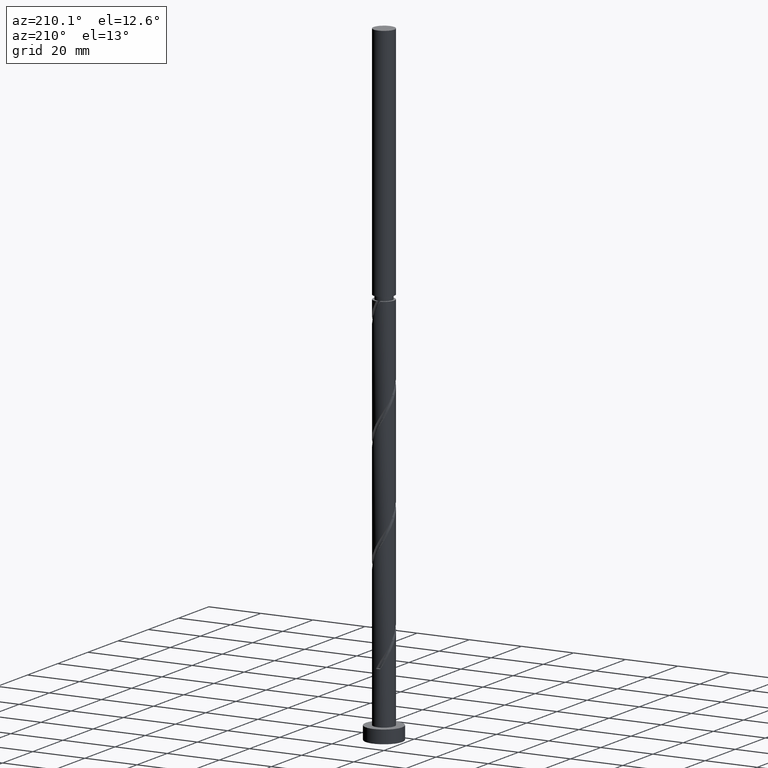
[diagram: clean part render]
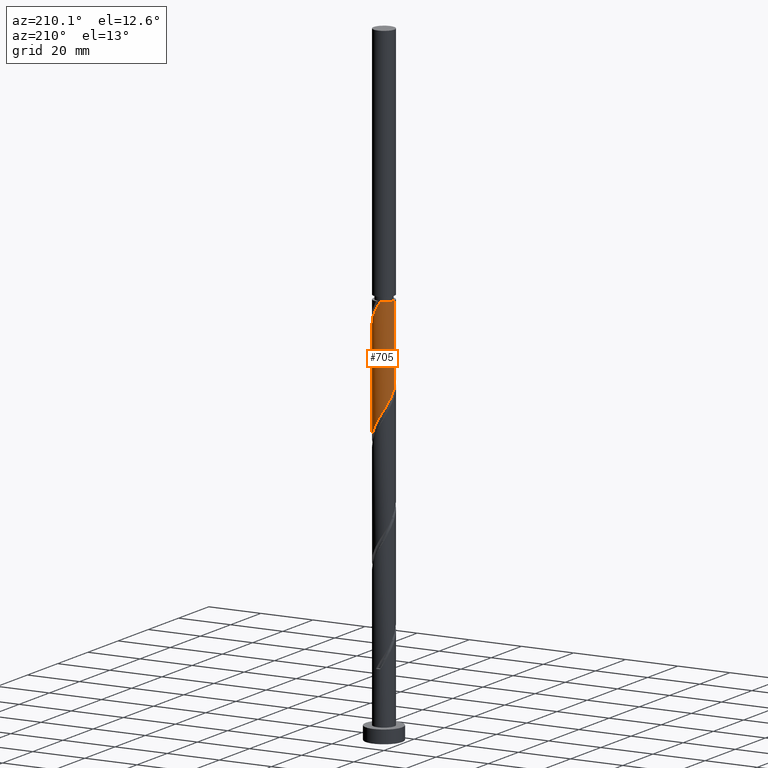
[diagram: same view with one face highlighted and labeled with its STEP entity id]
A machine part, auxiliary view. The second image highlights one B-rep face of the part: STEP entity #705.
In plain terms, the highlighted cylindrical surface (edge-blend (fillet) strip) has radius 4 mm, axis along (-0, -0, -1).
Its self-contained STEP definition (entity closure, byte-faithful):
#8 = CARTESIAN_POINT ( 'NONE',  ( 3.642154467511937277, 1.723543908038581041, 141.0507864414061032 ) ) ;
#14 = CARTESIAN_POINT ( 'NONE',  ( 3.999999999999999112, -4.157750912253752728E-15, 99.10947754806721832 ) ) ;
#35 = DIRECTION ( 'NONE',  ( -1.000000000000000000, 0.000000000000000000, 0.000000000000000000 ) ) ;
#48 = CARTESIAN_POINT ( 'NONE',  ( 0.1652574756069173367, 3.996584787885284928, 148.2623249029446129 ) ) ;
#93 = CYLINDRICAL_SURFACE ( 'NONE', #1162, 4.000000000000000000 ) ;
#109 = DIRECTION ( 'NONE',  ( -0.000000000000000000, -0.000000000000000000, -1.000000000000000000 ) ) ;
#158 = CARTESIAN_POINT ( 'NONE',  ( 2.773922925134614914, 2.881900693190635909, 143.4546325952522352 ) ) ;
#167 = ORIENTED_EDGE ( 'NONE', *, *, #364, .F. ) ;
#199 = CARTESIAN_POINT ( 'NONE',  ( 3.947525597521973406, 0.6457876252366410164, 100.1854018260215327 ) ) ;
#232 = CARTESIAN_POINT ( 'NONE',  ( -3.642154467511932392, 1.723543908038581929, 117.0123249029446129 ) ) ;
#241 = CARTESIAN_POINT ( 'NONE',  ( 0.000000000000000000, 0.000000000000000000, 242.0000000000000000 ) ) ;
#247 = CARTESIAN_POINT ( 'NONE',  ( 4.000000000000004441, 2.437817980925746622E-15, 138.1203004629501550 ) ) ;
#271 = VECTOR ( 'NONE', #109, 1000.000000000000000 ) ;
#285 = CARTESIAN_POINT ( 'NONE',  ( 4.000000000000000000, 4.898587196589412829E-16, 242.0000000000000000 ) ) ;
#292 = CARTESIAN_POINT ( 'NONE',  ( 4.000000000000000000, 0.3250257541481803569, 99.64917828541555878 ) ) ;
#297 = CARTESIAN_POINT ( 'NONE',  ( 3.948791133313481083, 0.8018362386540659470, 139.4482223388419868 ) ) ;
#302 = CARTESIAN_POINT ( 'NONE',  ( -1.116900737103331265, 3.840902594893293109, 111.4033505439702338 ) ) ;
#306 = ORIENTED_EDGE ( 'NONE', *, *, #457, .F. ) ;
#319 = CARTESIAN_POINT ( 'NONE',  ( 1.710977332407543017, 3.615599060734965953, 106.5956582362779415 ) ) ;
#364 = EDGE_CURVE ( 'NONE', #1182, #1364, #1195, .T. ) ;
#367 = ORIENTED_EDGE ( 'NONE', *, *, #794, .T. ) ;
#374 = CARTESIAN_POINT ( 'NONE',  ( -0.7959899496853205525, 3.919999999999999041, 149.8648890055088145 ) ) ;
#414 = CARTESIAN_POINT ( 'NONE',  ( 3.999999999999999112, -4.157750912253752728E-15, 99.10947754806723253 ) ) ;
#457 = EDGE_CURVE ( 'NONE', #1026, #851, #1445, .T. ) ;
#460 = CARTESIAN_POINT ( 'NONE',  ( 2.003633787528303234, 3.462001104198990209, 145.0571966978164085 ) ) ;
#468 = CARTESIAN_POINT ( 'NONE',  ( -3.999999999999993339, 0.000000000000000000, 149.8648890055087008 ) ) ;
#572 = CARTESIAN_POINT ( 'NONE',  ( -0.7959899496853205525, 3.919999999999999041, 149.8648890055087861 ) ) ;
#583 = CARTESIAN_POINT ( 'NONE',  ( 3.383001745131683169, 2.134314689176840307, 141.8520684926881472 ) ) ;
#588 = CARTESIAN_POINT ( 'NONE',  ( 0.3200157754540353117, 4.016650678315776268, 108.9995043901240876 ) ) ;
#596 = CARTESIAN_POINT ( 'NONE',  ( 3.795472800412710956, 1.262690073346322217, 140.2495043901240592 ) ) ;
#661 = CARTESIAN_POINT ( 'NONE',  ( -2.773922925134609585, 2.881900693190634133, 114.6084787490984382 ) ) ;
#679 =( BOUNDED_CURVE ( )  B_SPLINE_CURVE ( 2, ( #1168, #1570, #868, #1489, #910, #232, #810, #1350, #661, #1526, #1267, #1148, #302, #1506, #1359, #588, #1164, #1732, #319, #1128, #1396, #1127, #998, #855, #707, #1750, #199, #292, #14 ),
 .UNSPECIFIED., .F., .T. ) 
 B_SPLINE_CURVE_WITH_KNOTS ( ( 3, 2, 2, 2, 2, 2, 2, 2, 2, 2, 2, 2, 2, 2, 3 ),
 ( 0.4295271625973834384, 0.4326923076923077094, 0.4423076923076922906, 0.4519230769230769273, 0.4615384615384615641, 0.4711538461538461453, 0.4807692307692307820, 0.4903846153846153633, 0.5000000000000000000, 0.5096153846153845812, 0.5192307692307692735, 0.5288461538461538547, 0.5384615384615384359, 0.5480769230769231282, 0.5545271625973833274 ),
 .UNSPECIFIED. ) 
 CURVE ( )  GEOMETRIC_REPRESENTATION_ITEM ( )  RATIONAL_B_SPLINE_CURVE ( ( 0.9061636035682714141, 0.9069090390690600634, 0.9090909090909164991, 0.9024626128164200400, 0.9090909090909164991, 0.9024626128164200400, 0.9090909090909164991, 0.9024626128164200400, 0.9090909090909164991, 0.9024626128164200400, 0.9090909090909164991, 0.9024626128164200400, 0.9090909090909164991, 0.9024626128164200400, 0.9090909090909164991, 0.9024626128164200400, 0.9090909090909164991, 0.9024626128164200400, 0.9090909090909164991, 0.9024626128164200400, 0.9090909090909164991, 0.9024626128164200400, 0.9090909090909164991, 0.9024626128164200400, 0.9090909090909164991, 0.9024626128164200400, 0.9090909090909164991, 0.9046444828382765868, 0.9061636035682713031 ) ) 
 REPRESENTATION_ITEM ( '' )  );
#705 = ADVANCED_FACE ( 'NONE', ( #1472 ), #93, .T. ) ;
#707 = CARTESIAN_POINT ( 'NONE',  ( 3.678270583471656252, 1.571726921181627379, 101.7879659285856206 ) ) ;
#720 = CARTESIAN_POINT ( 'NONE',  ( 2.423996827517801655, 3.218715916066173133, 144.2559146465343076 ) ) ;
#756 = DIRECTION ( 'NONE',  ( -0.000000000000000000, -0.000000000000000000, -1.000000000000000000 ) ) ;
#794 = EDGE_CURVE ( 'NONE', #1182, #1068, #838, .T. ) ;
#810 = CARTESIAN_POINT ( 'NONE',  ( -3.383001745131677840, 2.134314689176838531, 116.2110428516625262 ) ) ;
#838 = LINE ( 'NONE', #285, #271 ) ;
#840 = CARTESIAN_POINT ( 'NONE',  ( 4.000000000000004441, 2.437817980925746622E-15, 138.1203004629501834 ) ) ;
#851 = VERTEX_POINT ( 'NONE', #1809 ) ;
#855 = CARTESIAN_POINT ( 'NONE',  ( 3.487428383617967587, 2.018349830254855259, 102.5892479798676789 ) ) ;
#868 = CARTESIAN_POINT ( 'NONE',  ( -3.987364772516037270, 0.3176825001445915952, 119.4161710567907448 ) ) ;
#873 = EDGE_LOOP ( 'NONE', ( #167, #367, #1035, #306, #1510 ) ) ;
#910 = CARTESIAN_POINT ( 'NONE',  ( -3.795472800412704295, 1.262690073346324438, 117.8136069542266569 ) ) ;
#927 = CIRCLE ( 'NONE', #1807, 3.999999999999993339 ) ;
#998 = CARTESIAN_POINT ( 'NONE',  ( 3.195247853079536071, 2.406323161462443849, 103.3905300311497228 ) ) ;
#1022 = CARTESIAN_POINT ( 'NONE',  ( 0.6505307266678636013, 3.976518897454790036, 147.4610428516625689 ) ) ;
#1026 = VERTEX_POINT ( 'NONE', #468 ) ;
#1035 = ORIENTED_EDGE ( 'NONE', *, *, #1311, .F. ) ;
#1037 = DIRECTION ( 'NONE',  ( -0.000000000000000000, -0.000000000000000000, -1.000000000000000000 ) ) ;
#1058 = CARTESIAN_POINT ( 'NONE',  ( 0.000000000000000000, 0.000000000000000000, 149.8648890055087008 ) ) ;
#1068 = VERTEX_POINT ( 'NONE', #414 ) ;
#1123 = CARTESIAN_POINT ( 'NONE',  ( 3.987364772516044376, 0.3176825001445888197, 138.6469402875599997 ) ) ;
#1127 = CARTESIAN_POINT ( 'NONE',  ( 2.903067322541106332, 2.794296492670033771, 104.1918120824317668 ) ) ;
#1128 = CARTESIAN_POINT ( 'NONE',  ( 2.149990540898524038, 3.407848799785711869, 105.7943761849959117 ) ) ;
#1142 = CARTESIAN_POINT ( 'NONE',  ( 1.116900737103336150, 3.840902594893297994, 146.6597608003805533 ) ) ;
#1148 = CARTESIAN_POINT ( 'NONE',  ( -1.583270747538802148, 3.705286292331802844, 112.2046325952522920 ) ) ;
#1162 = AXIS2_PLACEMENT_3D ( 'NONE', #241, #1381, #1544 ) ;
#1164 = CARTESIAN_POINT ( 'NONE',  ( 0.7959899496852975709, 3.919999999999999929, 108.1982223388420152 ) ) ;
#1168 = CARTESIAN_POINT ( 'NONE',  ( -3.999999999999999112, 4.441913744386202858E-15, 119.9428108814005611 ) ) ;
#1171 = CARTESIAN_POINT ( 'NONE',  ( 1.583270747538804812, 3.705286292331806841, 145.8584787490983672 ) ) ;
#1182 = VERTEX_POINT ( 'NONE', #247 ) ;
#1195 =( BOUNDED_CURVE ( )  B_SPLINE_CURVE ( 2, ( #840, #1546, #1123, #297, #596, #8, #583, #1271, #158, #720, #460, #1171, #1142, #1022, #48, #1202, #374 ),
 .UNSPECIFIED., .F., .T. ) 
 B_SPLINE_CURVE_WITH_KNOTS ( ( 3, 2, 2, 2, 2, 2, 2, 2, 3 ),
 ( 0.6795271625973832164, 0.6826923076923077094, 0.6923076923076922906, 0.7019230769230769829, 0.7115384615384616751, 0.7211538461538462563, 0.7307692307692310596, 0.7403846153846156408, 0.7500000000000002220 ),
 .UNSPECIFIED. ) 
 CURVE ( )  GEOMETRIC_REPRESENTATION_ITEM ( )  RATIONAL_B_SPLINE_CURVE ( ( 0.9061636035682766321, 0.9069090390690652814, 0.9090909090909219392, 0.9024626128164254801, 0.9090909090909219392, 0.9024626128164254801, 0.9090909090909219392, 0.9024626128164254801, 0.9090909090909219392, 0.9024626128164254801, 0.9090909090909219392, 0.9024626128164254801, 0.9090909090909219392, 0.9024626128164254801, 0.9090909090909219392, 0.9024626128164253691, 0.9090909090909220502 ) ) 
 REPRESENTATION_ITEM ( '' )  );
#1202 = CARTESIAN_POINT ( 'NONE',  ( -0.3200157754540440824, 4.016650678315781597, 149.0636069542266853 ) ) ;
#1267 = CARTESIAN_POINT ( 'NONE',  ( -2.003633787528297905, 3.462001104198987544, 113.0059146465343076 ) ) ;
#1271 = CARTESIAN_POINT ( 'NONE',  ( 3.123849022751428617, 2.545085470315094689, 142.6533505439702765 ) ) ;
#1311 = EDGE_CURVE ( 'NONE', #851, #1068, #679, .T. ) ;
#1350 = CARTESIAN_POINT ( 'NONE',  ( -3.123849022751424620, 2.545085470315094689, 115.4097608003804822 ) ) ;
#1359 = CARTESIAN_POINT ( 'NONE',  ( -0.1652574756069127293, 3.996584787885279599, 109.8007864414061459 ) ) ;
#1364 = VERTEX_POINT ( 'NONE', #572 ) ;
#1381 = DIRECTION ( 'NONE',  ( -0.000000000000000000, -0.000000000000000000, -1.000000000000000000 ) ) ;
#1396 = CARTESIAN_POINT ( 'NONE',  ( 2.526528931719815851, 3.101072646227870155, 104.9930941337138108 ) ) ;
#1445 = LINE ( 'NONE', #1468, #1818 ) ;
#1468 = CARTESIAN_POINT ( 'NONE',  ( -4.000000000000000000, 0.000000000000000000, 242.0000000000000000 ) ) ;
#1472 = FACE_OUTER_BOUND ( 'NONE', #873, .T. ) ;
#1489 = CARTESIAN_POINT ( 'NONE',  ( -3.948791133313477530, 0.8018362386540665021, 118.6148890055087151 ) ) ;
#1506 = CARTESIAN_POINT ( 'NONE',  ( -0.6505307266678607148, 3.976518897454785151, 110.6020684926882183 ) ) ;
#1510 = ORIENTED_EDGE ( 'NONE', *, *, #1698, .T. ) ;
#1526 = CARTESIAN_POINT ( 'NONE',  ( -2.423996827517795438, 3.218715916066173133, 113.8071966978164227 ) ) ;
#1544 = DIRECTION ( 'NONE',  ( -1.000000000000000000, 0.000000000000000000, 0.000000000000000000 ) ) ;
#1546 = CARTESIAN_POINT ( 'NONE',  ( 4.000000000000005329, 0.1590925213470663901, 138.3844713785831004 ) ) ;
#1570 = CARTESIAN_POINT ( 'NONE',  ( -3.999999999999998224, 0.1590925213470807398, 119.6786399657675872 ) ) ;
#1698 = EDGE_CURVE ( 'NONE', #1026, #1364, #927, .T. ) ;
#1732 = CARTESIAN_POINT ( 'NONE',  ( 1.271964123916560219, 3.823349321684224034, 107.3969402875599854 ) ) ;
#1750 = CARTESIAN_POINT ( 'NONE',  ( 3.869112783325348470, 1.125104012108396390, 100.9866838773036193 ) ) ;
#1807 = AXIS2_PLACEMENT_3D ( 'NONE', #1058, #1037, #35 ) ;
#1809 = CARTESIAN_POINT ( 'NONE',  ( -3.999999999999999112, 4.441913744386202858E-15, 119.9428108814005611 ) ) ;
#1818 = VECTOR ( 'NONE', #756, 1000.000000000000000 ) ;